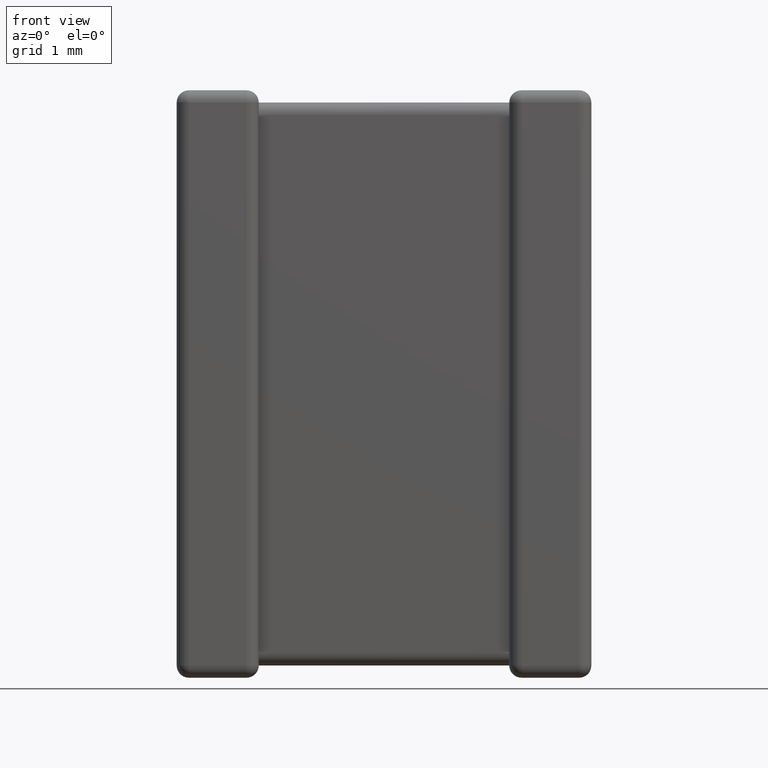
[diagram: clean part render]
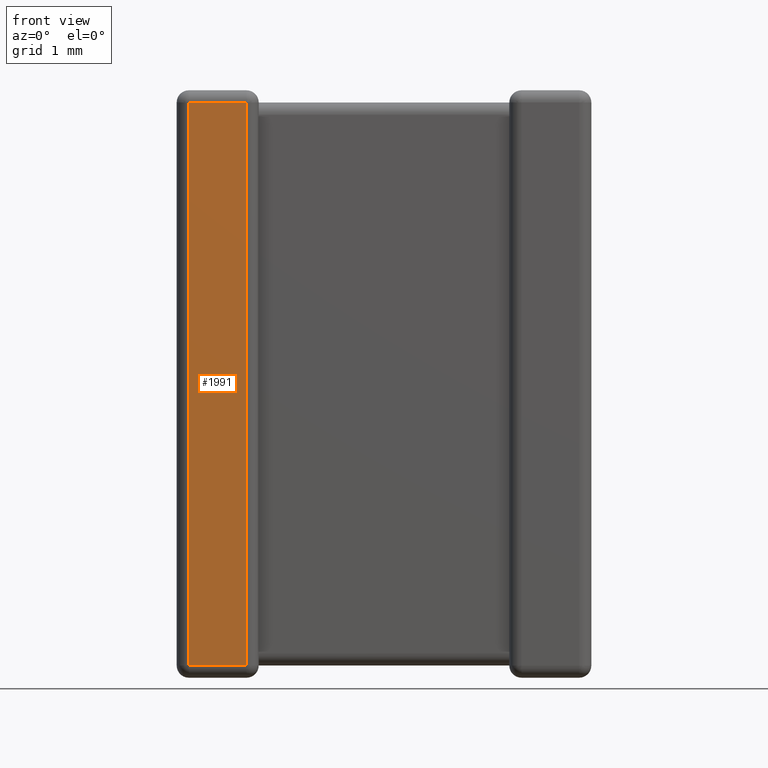
[diagram: same view with one face highlighted and labeled with its STEP entity id]
A machine part, front view. The second image highlights one B-rep face of the part: STEP entity #1991.
In plain terms, the highlighted planar face has unit normal (-0, 1, 0).
Its self-contained STEP definition (entity closure, byte-faithful):
#18 = VECTOR ( 'NONE', #1362, 1000.000000000000000 ) ;
#25 = LINE ( 'NONE', #861, #2669 ) ;
#68 = LINE ( 'NONE', #3308, #1021 ) ;
#70 = EDGE_CURVE ( 'NONE', #2561, #3707, #25, .T. ) ;
#216 = CARTESIAN_POINT ( 'NONE',  ( 4.799999999999999800, 0.0000000000000000000, -0.1414400000000000100 ) ) ;
#272 = ORIENTED_EDGE ( 'NONE', *, *, #70, .T. ) ;
#480 = AXIS2_PLACEMENT_3D ( 'NONE', #648, #1708, #2074 ) ;
#497 = EDGE_LOOP ( 'NONE', ( #652, #272, #1782, #3417 ) ) ;
#648 = CARTESIAN_POINT ( 'NONE',  ( 4.799999999999999800, 0.0000000000000000000, 0.0000000000000000000 ) ) ;
#652 = ORIENTED_EDGE ( 'NONE', *, *, #3322, .T. ) ;
#861 = CARTESIAN_POINT ( 'NONE',  ( 0.8085600000000016100, 0.0000000000000000000, 0.0000000000000000000 ) ) ;
#909 = EDGE_CURVE ( 'NONE', #3707, #2394, #4200, .T. ) ;
#1021 = VECTOR ( 'NONE', #1931, 1000.000000000000000 ) ;
#1359 = LINE ( 'NONE', #3791, #4336 ) ;
#1362 = DIRECTION ( 'NONE',  ( -1.000000000000000000, 0.0000000000000000000, 0.0000000000000000000 ) ) ;
#1457 = VERTEX_POINT ( 'NONE', #2395 ) ;
#1708 = DIRECTION ( 'NONE',  ( -0.0000000000000000000, 1.000000000000000000, 0.0000000000000000000 ) ) ;
#1782 = ORIENTED_EDGE ( 'NONE', *, *, #909, .T. ) ;
#1931 = DIRECTION ( 'NONE',  ( 0.0000000000000000000, 0.0000000000000000000, -1.000000000000000000 ) ) ;
#1991 = ADVANCED_FACE ( 'NONE', ( #2935 ), #4245, .F. ) ;
#2074 = DIRECTION ( 'NONE',  ( 0.0000000000000000000, -0.0000000000000000000, 1.000000000000000000 ) ) ;
#2394 = VERTEX_POINT ( 'NONE', #3367 ) ;
#2395 = CARTESIAN_POINT ( 'NONE',  ( 0.1414399999999996200, 0.0000000000000000000, -6.658560000000000500 ) ) ;
#2561 = VERTEX_POINT ( 'NONE', #4187 ) ;
#2669 = VECTOR ( 'NONE', #4556, 1000.000000000000000 ) ;
#2845 = EDGE_CURVE ( 'NONE', #2394, #1457, #68, .T. ) ;
#2935 = FACE_OUTER_BOUND ( 'NONE', #497, .T. ) ;
#3276 = CARTESIAN_POINT ( 'NONE',  ( 0.8085600000000016100, 0.0000000000000000000, -0.1414400000000000100 ) ) ;
#3308 = CARTESIAN_POINT ( 'NONE',  ( 0.1414399999999996200, 0.0000000000000000000, -6.800000000000000700 ) ) ;
#3322 = EDGE_CURVE ( 'NONE', #1457, #2561, #1359, .T. ) ;
#3367 = CARTESIAN_POINT ( 'NONE',  ( 0.1414399999999996200, 0.0000000000000000000, -0.1414400000000000100 ) ) ;
#3394 = DIRECTION ( 'NONE',  ( 1.000000000000000000, 0.0000000000000000000, -0.0000000000000000000 ) ) ;
#3417 = ORIENTED_EDGE ( 'NONE', *, *, #2845, .T. ) ;
#3707 = VERTEX_POINT ( 'NONE', #3276 ) ;
#3791 = CARTESIAN_POINT ( 'NONE',  ( 4.799999999999999800, 0.0000000000000000000, -6.658560000000000500 ) ) ;
#4187 = CARTESIAN_POINT ( 'NONE',  ( 0.8085600000000016100, 0.0000000000000000000, -6.658560000000000500 ) ) ;
#4200 = LINE ( 'NONE', #216, #18 ) ;
#4245 = PLANE ( 'NONE',  #480 ) ;
#4336 = VECTOR ( 'NONE', #3394, 1000.000000000000000 ) ;
#4556 = DIRECTION ( 'NONE',  ( 0.0000000000000000000, 0.0000000000000000000, 1.000000000000000000 ) ) ;